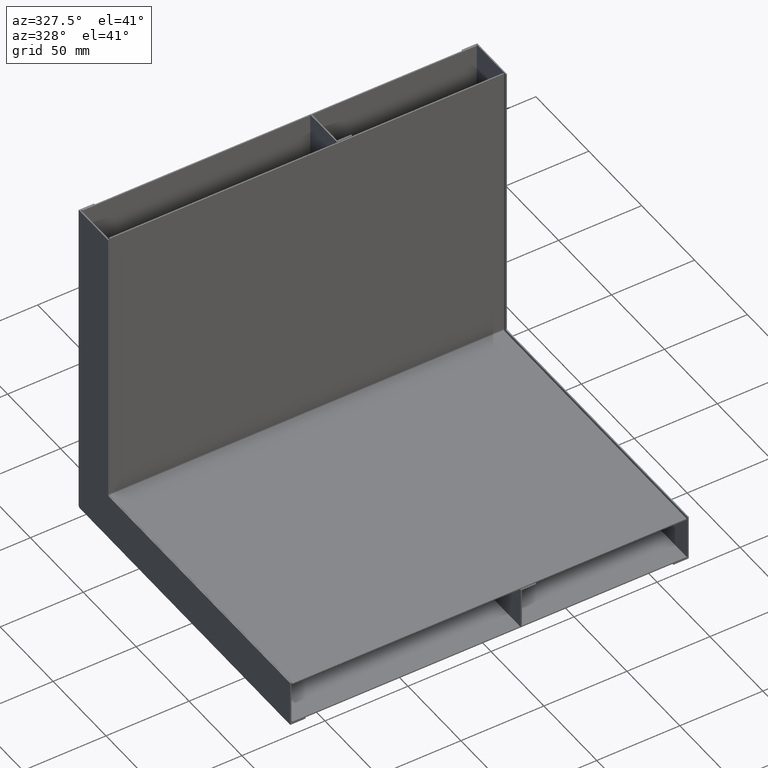
[diagram: clean part render]
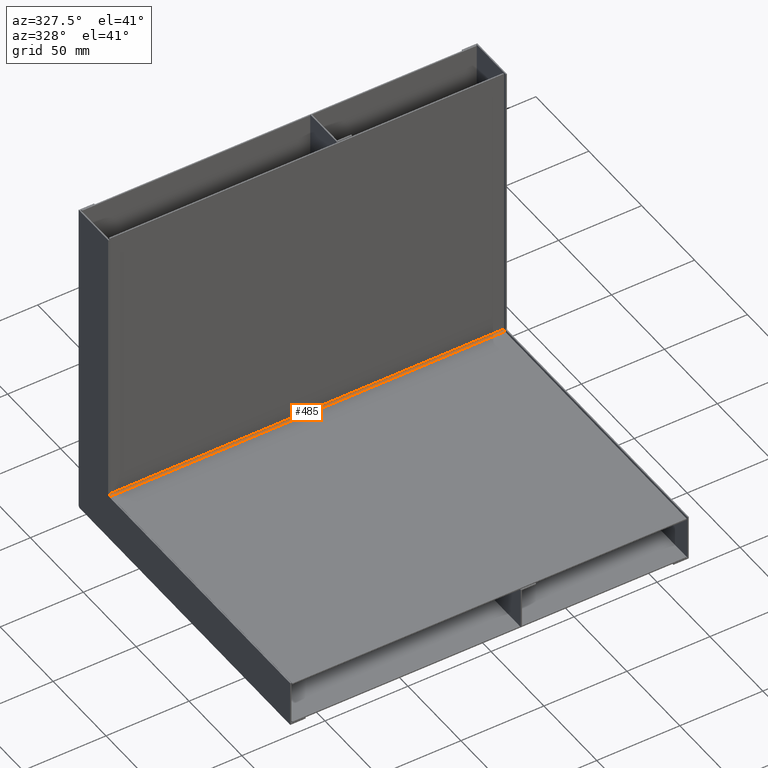
[diagram: same view with one face highlighted and labeled with its STEP entity id]
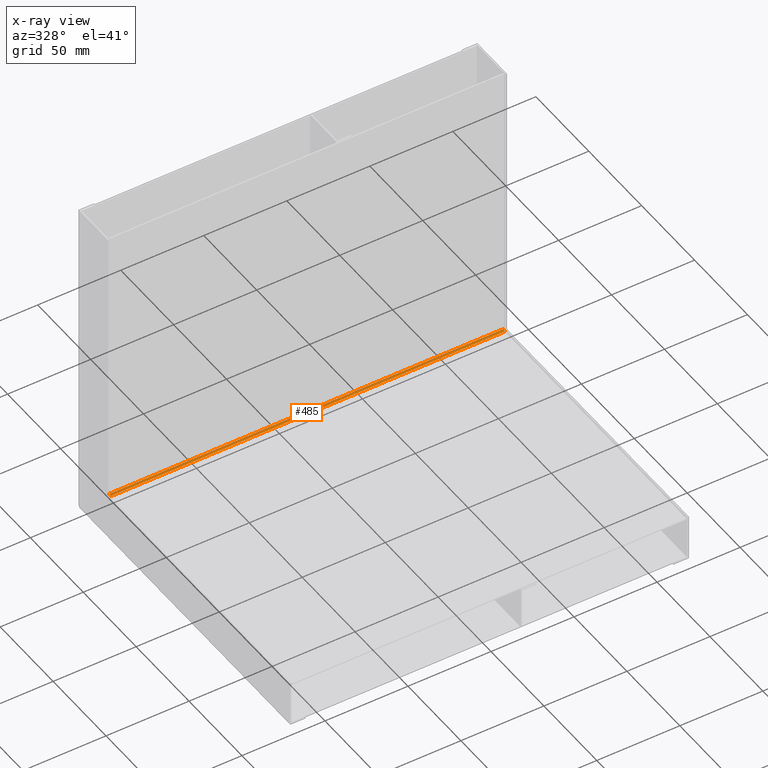
[diagram: x-ray of the same camera — body ghosted, the highlighted face saturated]
A machine part, auxiliary view. The second image highlights one B-rep face of the part: STEP entity #485.
The next image is the same camera in x-ray: the body ghosted, the highlighted face saturated — about 0% of this face is hidden behind the body in this view.
In plain terms, the highlighted cylindrical surface (edge-blend (fillet) strip) has radius 1 mm, axis along (-1, 0, 0).
Its self-contained STEP definition (entity closure, byte-faithful):
#271=DIRECTION('',(1.E0,0.E0,0.E0));
#272=VECTOR('',#271,2.375E2);
#273=CARTESIAN_POINT('',(-1.1875E2,-7.992247467147E-2,1.75E0));
#274=LINE('',#273,#272);
#278=CARTESIAN_POINT('',(1.1875E2,-1.079922474672E0,1.75E0));
#279=DIRECTION('',(-1.E0,0.E0,0.E0));
#280=DIRECTION('',(0.E0,1.E0,0.E0));
#281=AXIS2_PLACEMENT_3D('',#278,#279,#280);
#286=CARTESIAN_POINT('',(-1.1875E2,-1.079922474672E0,1.75E0));
#287=DIRECTION('',(1.E0,0.E0,0.E0));
#288=DIRECTION('',(0.E0,5.573319583618E-14,-1.E0));
#289=AXIS2_PLACEMENT_3D('',#286,#287,#288);
#315=DIRECTION('',(1.E0,0.E0,0.E0));
#316=VECTOR('',#315,2.375E2);
#317=CARTESIAN_POINT('',(-1.1875E2,-1.079922474671E0,7.5E-1));
#318=LINE('',#317,#316);
#391=CARTESIAN_POINT('',(1.1875E2,-7.992247467147E-2,1.75E0));
#393=VERTEX_POINT('',#391);
#398=CARTESIAN_POINT('',(-1.1875E2,-7.992247467147E-2,1.75E0));
#399=VERTEX_POINT('',#398);
#404=CARTESIAN_POINT('',(1.1875E2,-1.079922474671E0,7.5E-1));
#406=VERTEX_POINT('',#404);
#414=CARTESIAN_POINT('',(-1.1875E2,-1.079922474671E0,7.5E-1));
#415=VERTEX_POINT('',#414);
#472=CARTESIAN_POINT('',(2.375110048613E2,-1.079922474672E0,1.75E0));
#473=DIRECTION('',(-1.E0,0.E0,0.E0));
#474=DIRECTION('',(0.E0,0.E0,1.E0));
#475=AXIS2_PLACEMENT_3D('',#472,#473,#474);
#476=CYLINDRICAL_SURFACE('',#475,1.E0);
#477=ORIENTED_EDGE('',*,*,#462,.T.);
#478=ORIENTED_EDGE('',*,*,#452,.T.);
#480=ORIENTED_EDGE('',*,*,#479,.F.);
#482=ORIENTED_EDGE('',*,*,#481,.T.);
#483=EDGE_LOOP('',(#477,#478,#480,#482));
#484=FACE_OUTER_BOUND('',#483,.F.);
#282=CIRCLE('',#281,1.E0);
#290=CIRCLE('',#289,1.E0);
#452=EDGE_CURVE('',#393,#406,#282,.T.);
#462=EDGE_CURVE('',#399,#393,#274,.T.);
#479=EDGE_CURVE('',#415,#406,#318,.T.);
#481=EDGE_CURVE('',#415,#399,#290,.T.);
#485=ADVANCED_FACE('',(#484),#476,.F.);